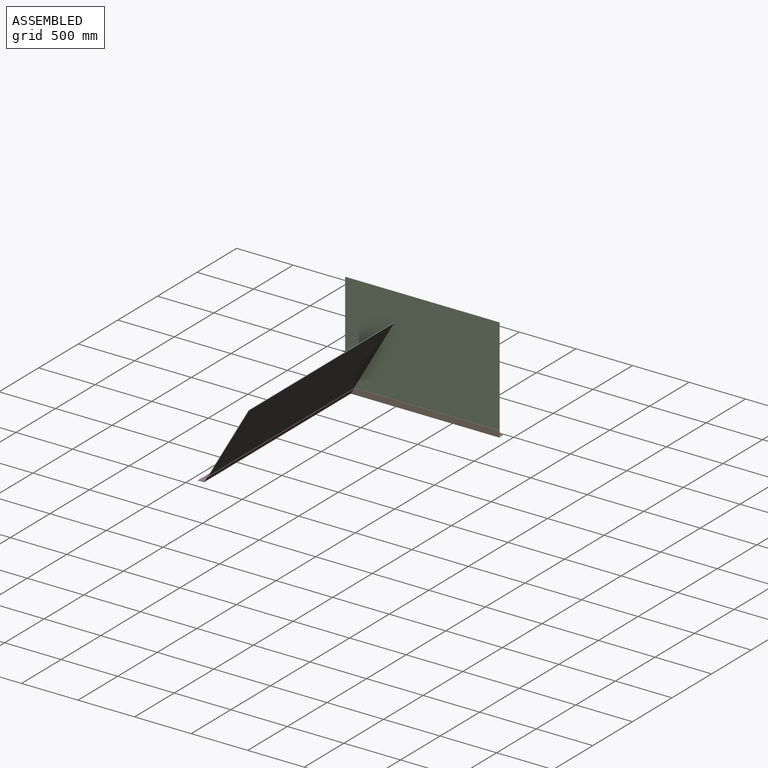
[diagram: assembled view]
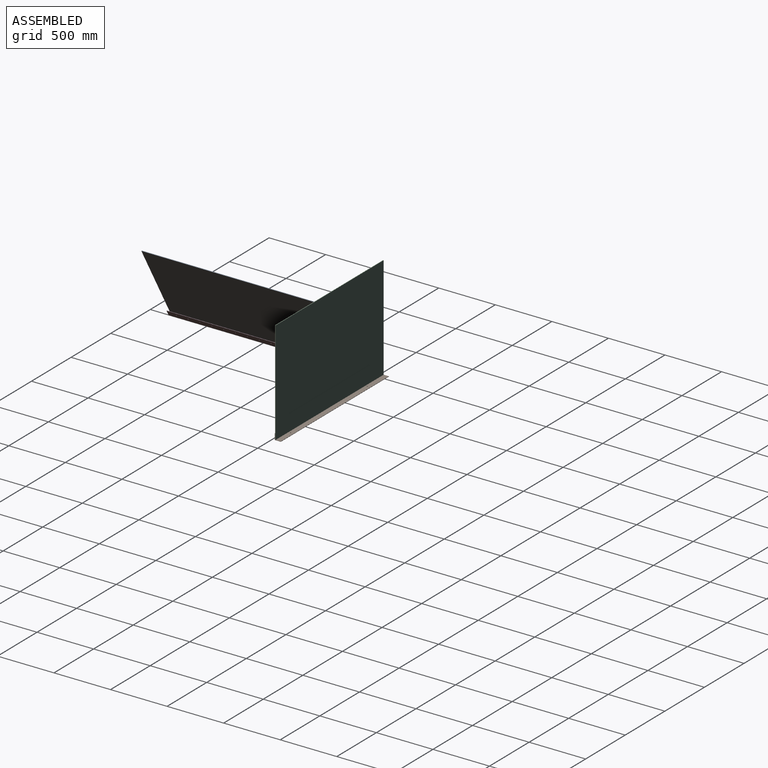
[diagram: assembled view, second angle]
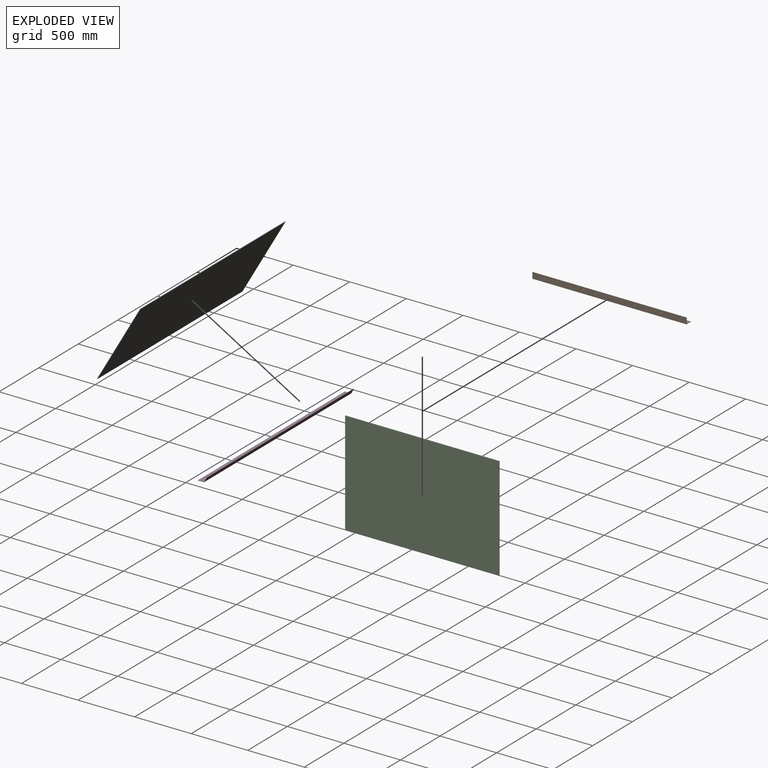
[diagram: exploded view]
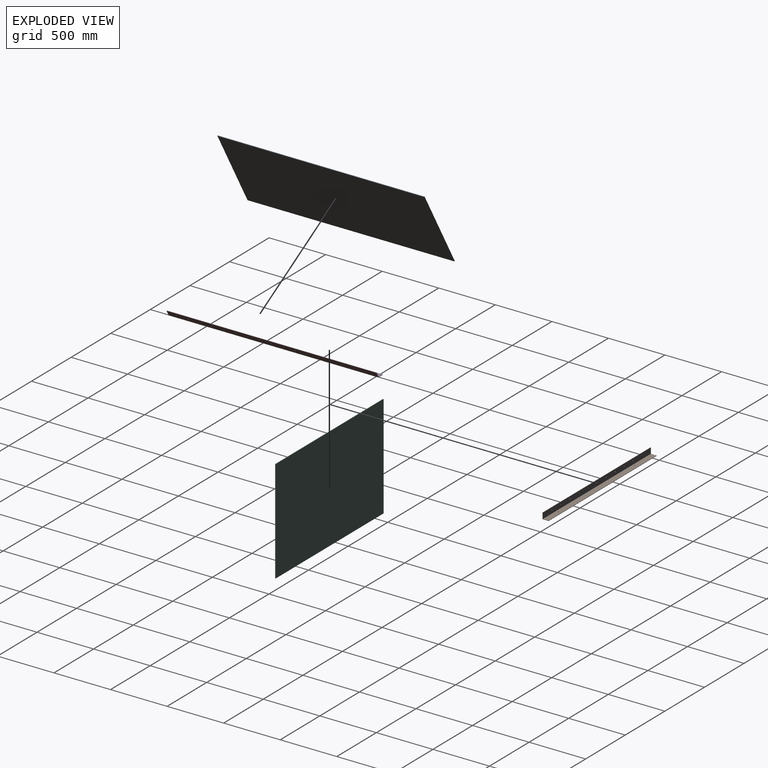
[diagram: exploded view, second angle]
ASSEMBLY  parts=4 mates=3
PART A: 6 faces, bbox 1828.8x4.8x762 mm
  f0: plane 1828.8x4.76mm, normal (0,0,1), area 8709.7mm2, adj f1,f3,f4,f5
  f1: plane 762x4.76mm, normal (-1,0,0), area 3629mm2, adj f0,f2,f4,f5
  f2: plane 1828.8x4.76mm, normal (0,0,-1), area 8709.7mm2, adj f1,f3,f4,f5
  f3: plane 762x4.76mm, normal (1,0,0), area 3629mm2, adj f0,f2,f4,f5
  f4: plane 1828.8x762mm, normal (0,-1,0), area 1393545.6mm2, adj f0,f1,f2,f3
  f5: plane 1828.8x762mm, normal (0,1,0), area 1393545.6mm2, adj f0,f1,f2,f3
PART B: 21 faces, bbox 54x1363.5x54 mm
  f0: plane 1363.47x50.8mm, normal (0,0,1), area 69175mm2, adj f1,f5,f6,f7,f8,f9
  f1: plane 1363.47x3.18mm, normal (-1,0,0), area 4329mm2, adj f0,f2,f6,f7
  f2: plane 1363.47x53.98mm, normal (0,0,-1), area 73504mm2, adj f1,f3,f6,f7,f8,f9
  f3: plane 1363.47x53.98mm, normal (1,0,0), area 73153.3mm2, adj f2,f4,f6,f7,f10,f11,f12,f13
  f4: plane 1363.47x3.18mm, normal (0,0,1), area 4329mm2, adj f3,f5,f6,f7
  f5: plane 1363.47x50.8mm, normal (-1,0,0), area 68824.3mm2, adj f0,f4,f6,f7,f10,f11,f12,f13
  f6: plane 53.98x53.98mm, normal (0,1,0), area 332.7mm2, adj f0,f1,f2,f3,f4,f5
  f7: plane 53.98x53.98mm, normal (0,-1,0), area 332.7mm2, adj f0,f1,f2,f3,f4,f5
  f8: cylinder r=3.77mm len=7.54mm, axis (0,0,1), area 75.2mm2, adj f0,f2
  f9: cylinder r=3.77mm len=7.54mm, axis (0,0,1), area 75.2mm2, adj f0,f2
  f10: cylinder r=3.57mm len=7.14mm, axis (-1,0,0), area 71.2mm2, adj f3,f5
  f11: cylinder r=3.57mm len=7.14mm, axis (-1,0,0), area 71.2mm2, adj f3,f5
  f12: cylinder r=3.57mm len=7.14mm, axis (-1,0,0), area 71.2mm2, adj f3,f5
  f13: cylinder r=3.57mm len=7.14mm, axis (-1,0,0), area 71.2mm2, adj f3,f5
  f14: cylinder r=3.57mm len=7.14mm, axis (-1,0,0), area 71.2mm2, adj f3,f5
  f15: cylinder r=3.57mm len=7.14mm, axis (-1,0,0), area 71.2mm2, adj f3,f5
  f16: cylinder r=3.57mm len=7.14mm, axis (-1,0,0), area 71.2mm2, adj f3,f5
  f17: cylinder r=3.57mm len=7.14mm, axis (-1,0,0), area 71.2mm2, adj f3,f5
  f18: cylinder r=3.57mm len=7.14mm, axis (-1,0,0), area 71.2mm2, adj f3,f5
  f19: cylinder r=3.57mm len=7.14mm, axis (-1,0,0), area 71.2mm2, adj f3,f5
  f20: cylinder r=3.57mm len=7.14mm, axis (-1,0,0), area 71.2mm2, adj f3,f5
PART C: 6 faces, bbox 1363.5x4.8x914.4 mm
  f0: plane 1363.47x4.76mm, normal (0,0,1), area 6493.5mm2, adj f1,f3,f4,f5
  f1: plane 914.4x4.76mm, normal (-1,0,0), area 4354.8mm2, adj f0,f2,f4,f5
  f2: plane 1363.47x4.76mm, normal (0,0,-1), area 6493.5mm2, adj f1,f3,f4,f5
  f3: plane 914.4x4.76mm, normal (1,0,0), area 4354.8mm2, adj f0,f2,f4,f5
  f4: plane 1363.47x914.4mm, normal (0,-1,0), area 1246758.8mm2, adj f0,f1,f2,f3
  f5: plane 1363.47x914.4mm, normal (0,1,0), area 1246758.8mm2, adj f0,f1,f2,f3
PART D: 35 faces, bbox 81.7x1854.2x48.8 mm
  f0: plane 48.97x3.18mm, normal (0,-1,0), area 155.5mm2, adj f1,f7,f8,f32
  f1: plane 1854.2x3.18mm, normal (-1,0,0), area 5887.1mm2, adj f0,f2,f7,f8
  f2: plane 48.97x3.18mm, normal (0,1,0), area 155.5mm2, adj f1,f7,f8,f31
  f3: cylinder r=3.77mm len=7.54mm, axis (0,0,1), area 75.2mm2, adj f7,f8
  f4: cylinder r=3.77mm len=7.54mm, axis (0,0,1), area 75.2mm2, adj f7,f8
  f5: cylinder r=3.77mm len=7.54mm, axis (0,0,1), area 75.2mm2, adj f7,f8
  f6: cylinder r=3.77mm len=7.54mm, axis (0,0,1), area 75.2mm2, adj f7,f8
  f7: plane 1854.2x48.97mm, normal (0,0,-1), area 90615.7mm2, adj f0,f1,f2,f3,f4,f5,f6,f33
  f8: plane 1854.2x48.97mm, normal (0,0,1), area 90615.7mm2, adj f0,f1,f2,f3,f4,f5,f6,f34
  f9: plane 43.99x27.23mm, normal (0,-1,0), area 155.5mm2, adj f28,f29,f30,f32
  f10: plane 43.99x27.23mm, normal (0,1,0), area 155.5mm2, adj f28,f29,f30,f31
  f11: cylinder r=3.57mm len=7.77mm, axis (0.87,0,-0.5), area 71.2mm2, adj f29,f30
  f12: cylinder r=3.57mm len=7.77mm, axis (0.87,0,-0.5), area 71.2mm2, adj f29,f30
  f13: cylinder r=3.57mm len=7.77mm, axis (0.87,0,-0.5), area 71.2mm2, adj f29,f30
  f14: cylinder r=3.57mm len=7.77mm, axis (0.87,0,-0.5), area 71.2mm2, adj f29,f30
  f15: cylinder r=3.57mm len=7.77mm, axis (0.87,0,-0.5), area 71.2mm2, adj f29,f30
  f16: cylinder r=3.57mm len=7.77mm, axis (0.87,0,-0.5), area 71.2mm2, adj f29,f30
  f17: cylinder r=3.57mm len=7.77mm, axis (0.87,0,-0.5), area 71.2mm2, adj f29,f30
  f18: cylinder r=3.57mm len=7.77mm, axis (0.87,0,-0.5), area 71.2mm2, adj f29,f30
  f19: cylinder r=3.57mm len=7.77mm, axis (0.87,0,-0.5), area 71.2mm2, adj f29,f30
  f20: cylinder r=3.57mm len=7.77mm, axis (0.87,0,-0.5), area 71.2mm2, adj f29,f30
  f21: cylinder r=3.57mm len=7.77mm, axis (0.87,0,-0.5), area 71.2mm2, adj f29,f30
  f22: cylinder r=3.57mm len=7.77mm, axis (0.87,0,-0.5), area 71.2mm2, adj f29,f30
  f23: cylinder r=3.57mm len=7.77mm, axis (0.87,0,-0.5), area 71.2mm2, adj f29,f30
  f24: cylinder r=3.57mm len=7.77mm, axis (0.87,0,-0.5), area 71.2mm2, adj f29,f30
  f25: cylinder r=3.57mm len=7.77mm, axis (0.87,0,-0.5), area 71.2mm2, adj f29,f30
  f26: cylinder r=3.57mm len=7.77mm, axis (0.87,0,-0.5), area 71.2mm2, adj f29,f30
  f27: cylinder r=3.57mm len=7.77mm, axis (0.87,0,-0.5), area 71.2mm2, adj f29,f30
  f28: plane 1854.2x2.75mm, normal (0.5,0,0.87), area 5887.1mm2, adj f9,f10,f29,f30
  f29: plane 1854.2x42.41mm, normal (0.87,0,-0.5), area 90114.3mm2, adj f9,f10,f11,f12,f13,f14,f15,f16
  f30: plane 1854.2x42.41mm, normal (-0.87,0,0.5), area 90114.3mm2, adj f9,f10,f11,f12,f13,f14,f15,f16
  f31: plane 8.25x6.35mm, normal (0,1,0), area 26.4mm2, adj f2,f10,f33,f34
  f32: plane 8.25x6.35mm, normal (0,-1,0), area 26.4mm2, adj f0,f9,f33,f34
  f33: cylinder r=9.53mm len=1854.2mm, axis (0,1,0), area 18494.8mm2, adj f7,f29,f31,f32
  f34: cylinder r=6.35mm len=1854.2mm, axis (0,1,0), area 12329.9mm2, adj f8,f30,f31,f32
PLACE A rot(axis=(-0.25,0.25,-0.94),93.8deg) t=(201.64,12.69,313.46)mm
PLACE B rot(axis=(0,0,-1),90deg) t=(640.47,954.07,-22.45)mm
PLACE C rot(axis=(0,0,1),0deg) t=(640.47,932.64,436.34)mm
PLACE D t=(9.54,-0.01,-19.28)mm
MATE fastened A.f5 <-> D.f30  axis (0.87,0,-0.5) through (13.2,927.09,-17.69)mm
MATE fastened B.f3 <-> D.f2  axis (0,-1,0) through (-41.26,927.09,-24.04)mm
MATE fastened C.f4 <-> B.f5  axis (0,-1,0) through (-41.26,930.26,-20.86)mm
